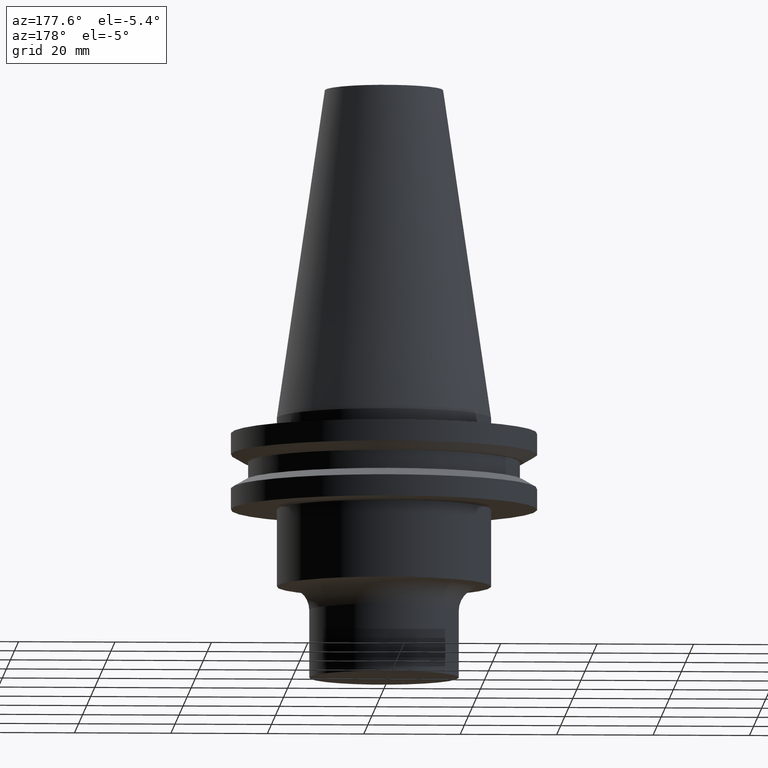
[diagram: clean part render]
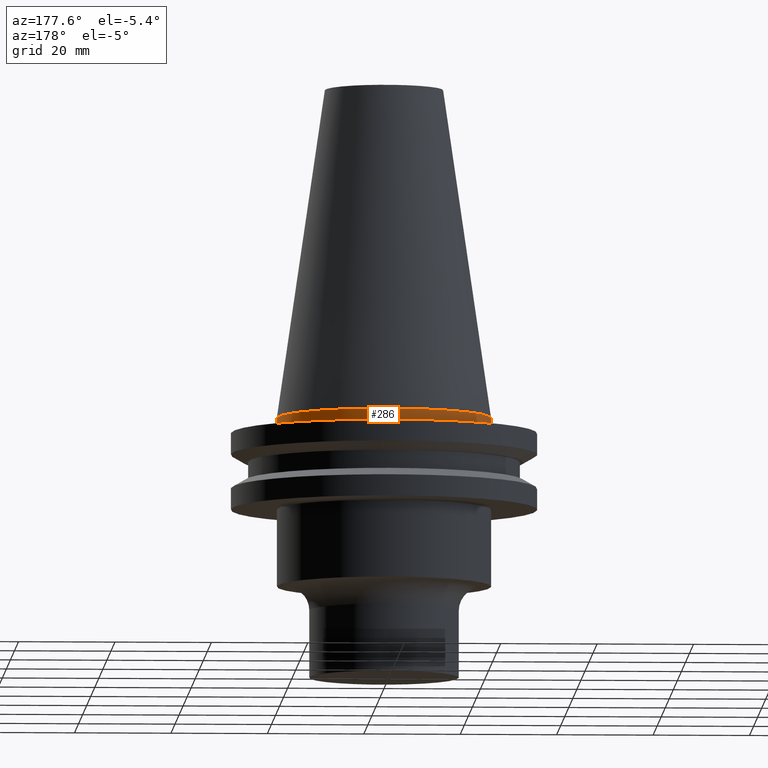
[diagram: same view with one face highlighted and labeled with its STEP entity id]
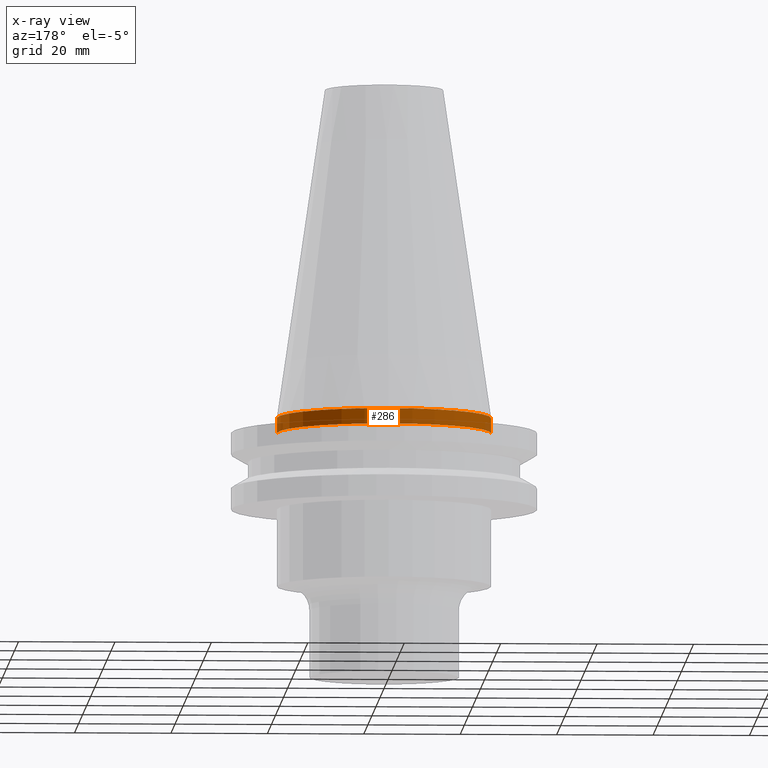
[diagram: x-ray of the same camera — body ghosted, the highlighted face saturated]
A machine part, auxiliary view. The second image highlights one B-rep face of the part: STEP entity #286.
The next image is the same camera in x-ray: the body ghosted, the highlighted face saturated — about 3% of this face is hidden behind the body in this view.
In plain terms, the highlighted cylindrical surface (partial cylindrical patch) has radius 22.225 mm, axis along (-0, -0, 1).
Its self-contained STEP definition (entity closure, byte-faithful):
#3 = CARTESIAN_POINT ( 'NONE',  ( 22.22500000000000142, 2.721777511104992849E-15, 0.000000000000000000 ) ) ;
#7 = VERTEX_POINT ( 'NONE', #626 ) ;
#8 = CYLINDRICAL_SURFACE ( 'NONE', #413, 22.22500000000000142 ) ;
#9 = ORIENTED_EDGE ( 'NONE', *, *, #397, .T. ) ;
#17 = CARTESIAN_POINT ( 'NONE',  ( 0.000000000000000000, 0.000000000000000000, -3.174999999999997158 ) ) ;
#25 = ORIENTED_EDGE ( 'NONE', *, *, #635, .T. ) ;
#63 = AXIS2_PLACEMENT_3D ( 'NONE', #659, #548, #490 ) ;
#87 = CIRCLE ( 'NONE', #63, 22.22500000000000142 ) ;
#129 = VERTEX_POINT ( 'NONE', #392 ) ;
#176 = CARTESIAN_POINT ( 'NONE',  ( 0.000000000000000000, 0.000000000000000000, 68.25000000000000000 ) ) ;
#191 = CARTESIAN_POINT ( 'NONE',  ( 22.22500000000000142, 0.000000000000000000, -3.174999999999997158 ) ) ;
#230 = AXIS2_PLACEMENT_3D ( 'NONE', #17, #747, #268 ) ;
#236 = VERTEX_POINT ( 'NONE', #3 ) ;
#253 = DIRECTION ( 'NONE',  ( 1.000000000000000000, 0.000000000000000000, 0.000000000000000000 ) ) ;
#268 = DIRECTION ( 'NONE',  ( 1.000000000000000000, 0.000000000000000000, 0.000000000000000000 ) ) ;
#286 = ADVANCED_FACE ( 'NONE', ( #298 ), #8, .T. ) ;
#298 = FACE_OUTER_BOUND ( 'NONE', #638, .T. ) ;
#328 = ORIENTED_EDGE ( 'NONE', *, *, #728, .F. ) ;
#377 = VECTOR ( 'NONE', #709, 1000.000000000000000 ) ;
#392 = CARTESIAN_POINT ( 'NONE',  ( -22.22500000000000142, 0.000000000000000000, 0.000000000000000000 ) ) ;
#393 = LINE ( 'NONE', #761, #377 ) ;
#397 = EDGE_CURVE ( 'NONE', #715, #7, #582, .T. ) ;
#413 = AXIS2_PLACEMENT_3D ( 'NONE', #176, #415, #253 ) ;
#415 = DIRECTION ( 'NONE',  ( -0.000000000000000000, -0.000000000000000000, 1.000000000000000000 ) ) ;
#490 = DIRECTION ( 'NONE',  ( 1.000000000000000000, 0.000000000000000000, 0.000000000000000000 ) ) ;
#501 = ORIENTED_EDGE ( 'NONE', *, *, #708, .F. ) ;
#528 = VECTOR ( 'NONE', #535, 1000.000000000000000 ) ;
#535 = DIRECTION ( 'NONE',  ( -0.000000000000000000, -0.000000000000000000, 1.000000000000000000 ) ) ;
#548 = DIRECTION ( 'NONE',  ( -0.000000000000000000, -0.000000000000000000, 1.000000000000000000 ) ) ;
#582 = CIRCLE ( 'NONE', #230, 22.22500000000000142 ) ;
#626 = CARTESIAN_POINT ( 'NONE',  ( -22.22500000000000142, 2.721777511104992849E-15, -3.174999999999997158 ) ) ;
#635 = EDGE_CURVE ( 'NONE', #7, #129, #393, .T. ) ;
#638 = EDGE_LOOP ( 'NONE', ( #9, #25, #501, #328 ) ) ;
#659 = CARTESIAN_POINT ( 'NONE',  ( 0.000000000000000000, 0.000000000000000000, 0.000000000000000000 ) ) ;
#663 = LINE ( 'NONE', #775, #528 ) ;
#708 = EDGE_CURVE ( 'NONE', #236, #129, #87, .T. ) ;
#709 = DIRECTION ( 'NONE',  ( -0.000000000000000000, -0.000000000000000000, 1.000000000000000000 ) ) ;
#715 = VERTEX_POINT ( 'NONE', #191 ) ;
#728 = EDGE_CURVE ( 'NONE', #715, #236, #663, .T. ) ;
#747 = DIRECTION ( 'NONE',  ( -0.000000000000000000, -0.000000000000000000, 1.000000000000000000 ) ) ;
#761 = CARTESIAN_POINT ( 'NONE',  ( -22.22500000000000142, 2.721777511104992849E-15, 68.25000000000000000 ) ) ;
#775 = CARTESIAN_POINT ( 'NONE',  ( 22.22500000000000142, 0.000000000000000000, 68.25000000000000000 ) ) ;